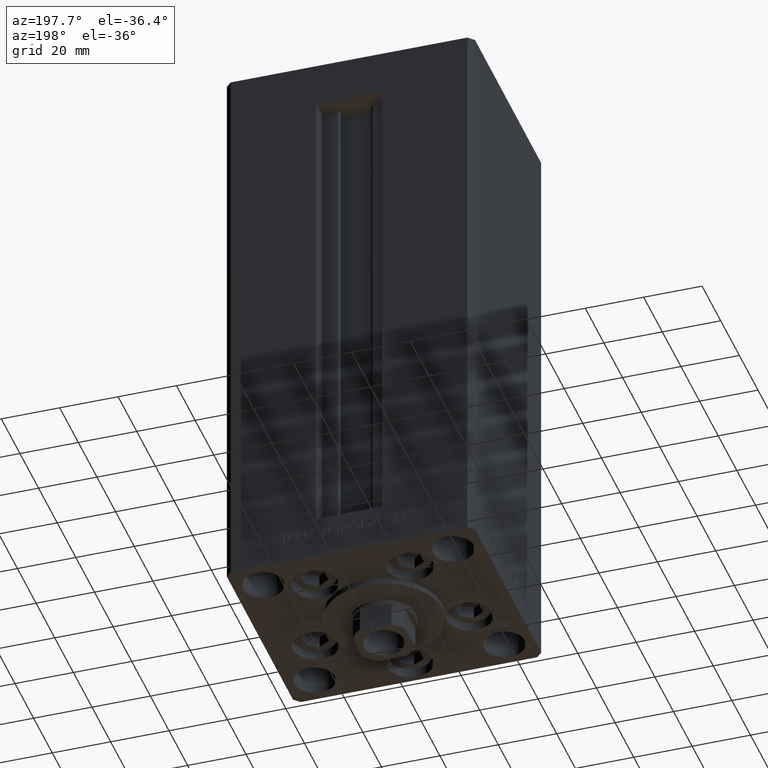
[diagram: clean part render]
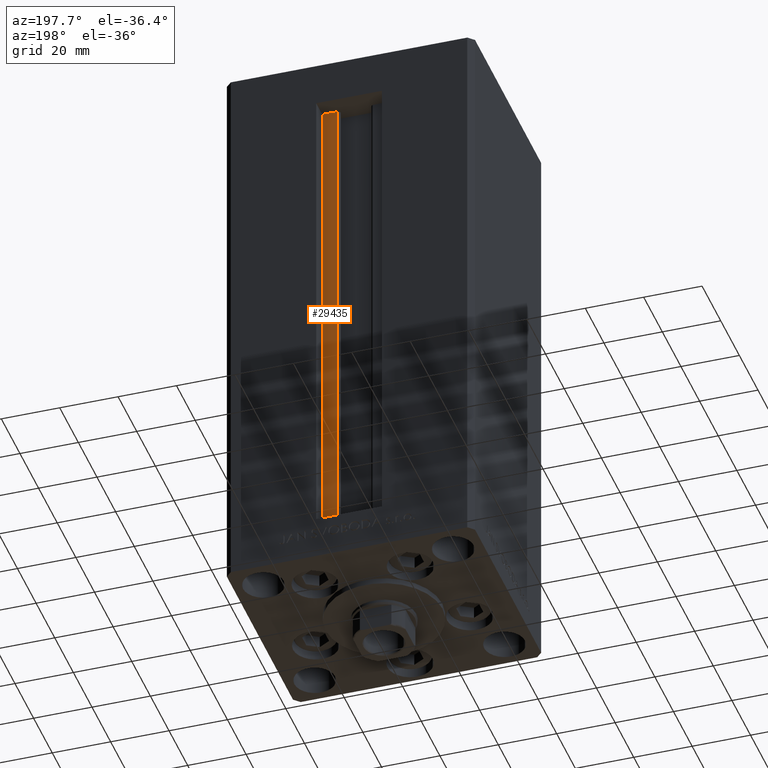
[diagram: same view with one face highlighted and labeled with its STEP entity id]
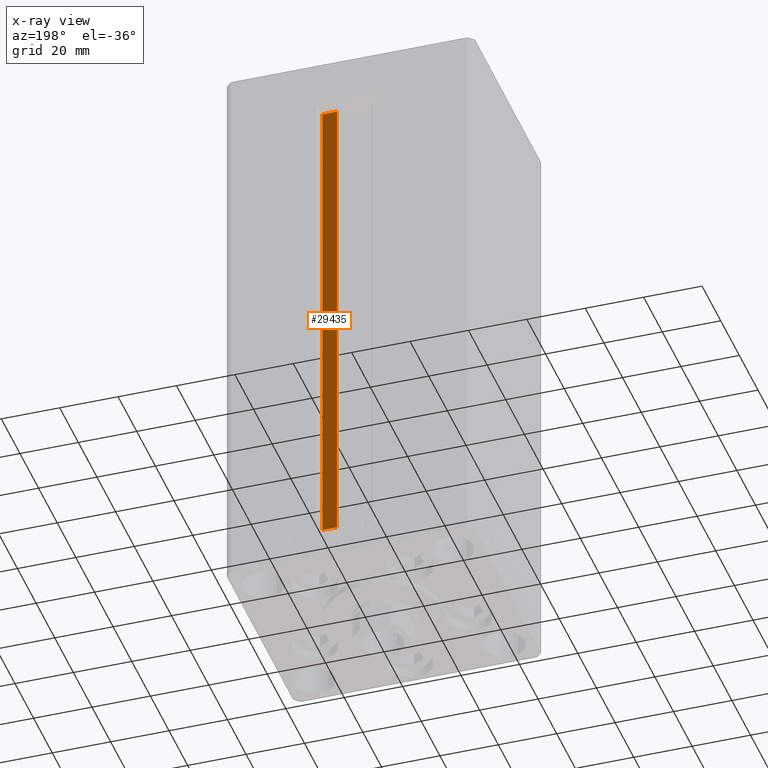
[diagram: x-ray of the same camera — body ghosted, the highlighted face saturated]
A machine part, auxiliary view. The second image highlights one B-rep face of the part: STEP entity #29435.
The next image is the same camera in x-ray: the body ghosted, the highlighted face saturated — about 0% of this face is hidden behind the body in this view.
In plain terms, the highlighted planar face has unit normal (0, -1, 0).
Its self-contained STEP definition (entity closure, byte-faithful):
#720 = DIRECTION ( 'NONE',  ( -0.000000000000000000, -0.000000000000000000, 1.000000000000000000 ) ) ;
#4165 = CARTESIAN_POINT ( 'NONE',  ( 11.25000000000000000, 30.99999999999999289, 0.000000000000000000 ) ) ;
#4417 = VECTOR ( 'NONE', #720, 1000.000000000000000 ) ;
#5646 = EDGE_CURVE ( 'NONE', #39205, #37683, #34387, .T. ) ;
#6687 = CARTESIAN_POINT ( 'NONE',  ( 11.25000000000000000, 30.99999999999999289, 168.5000000000000000 ) ) ;
#6946 = DIRECTION ( 'NONE',  ( 0.000000000000000000, -1.000000000000000000, 0.000000000000000000 ) ) ;
#7652 = EDGE_CURVE ( 'NONE', #37683, #17794, #28116, .T. ) ;
#8407 = EDGE_LOOP ( 'NONE', ( #10072, #34427, #46985, #15346 ) ) ;
#8584 = DIRECTION ( 'NONE',  ( -1.000000000000000000, 0.000000000000000000, 0.000000000000000000 ) ) ;
#10072 = ORIENTED_EDGE ( 'NONE', *, *, #5646, .F. ) ;
#10658 = FACE_OUTER_BOUND ( 'NONE', #8407, .T. ) ;
#14381 = VECTOR ( 'NONE', #16017, 1000.000000000000000 ) ;
#14615 = DIRECTION ( 'NONE',  ( 0.000000000000000000, -0.000000000000000000, -1.000000000000000000 ) ) ;
#14730 = VECTOR ( 'NONE', #8584, 1000.000000000000000 ) ;
#15346 = ORIENTED_EDGE ( 'NONE', *, *, #7652, .F. ) ;
#16017 = DIRECTION ( 'NONE',  ( 1.000000000000000000, 0.000000000000000000, 0.000000000000000000 ) ) ;
#16648 = DIRECTION ( 'NONE',  ( -0.000000000000000000, -0.000000000000000000, 1.000000000000000000 ) ) ;
#17327 = VECTOR ( 'NONE', #16648, 1000.000000000000000 ) ;
#17794 = VERTEX_POINT ( 'NONE', #46589 ) ;
#22587 = CARTESIAN_POINT ( 'NONE',  ( 11.25000000000000000, 30.99999999999999289, 0.000000000000000000 ) ) ;
#22956 = CARTESIAN_POINT ( 'NONE',  ( 6.183333333333999704, 30.99999999999999289, 0.000000000000000000 ) ) ;
#26260 = PLANE ( 'NONE',  #32952 ) ;
#27165 = LINE ( 'NONE', #22956, #14381 ) ;
#28116 = LINE ( 'NONE', #35560, #14730 ) ;
#29435 = ADVANCED_FACE ( 'NONE', ( #10658 ), #26260, .F. ) ;
#32952 = AXIS2_PLACEMENT_3D ( 'NONE', #36435, #6946, #14615 ) ;
#34371 = EDGE_CURVE ( 'NONE', #38234, #17794, #42674, .T. ) ;
#34387 = LINE ( 'NONE', #4165, #4417 ) ;
#34427 = ORIENTED_EDGE ( 'NONE', *, *, #45796, .F. ) ;
#35560 = CARTESIAN_POINT ( 'NONE',  ( 0.000000000000000000, 30.99999999999999289, 168.5000000000000000 ) ) ;
#36196 = CARTESIAN_POINT ( 'NONE',  ( 6.183333333333999704, 30.99999999999999289, 0.000000000000000000 ) ) ;
#36435 = CARTESIAN_POINT ( 'NONE',  ( 6.183333333333999704, 30.99999999999999289, 0.000000000000000000 ) ) ;
#37683 = VERTEX_POINT ( 'NONE', #6687 ) ;
#38234 = VERTEX_POINT ( 'NONE', #42786 ) ;
#39205 = VERTEX_POINT ( 'NONE', #22587 ) ;
#42674 = LINE ( 'NONE', #36196, #17327 ) ;
#42786 = CARTESIAN_POINT ( 'NONE',  ( 6.183333333333999704, 30.99999999999999289, 0.000000000000000000 ) ) ;
#45796 = EDGE_CURVE ( 'NONE', #38234, #39205, #27165, .T. ) ;
#46589 = CARTESIAN_POINT ( 'NONE',  ( 6.183333333333999704, 30.99999999999999289, 168.5000000000000000 ) ) ;
#46985 = ORIENTED_EDGE ( 'NONE', *, *, #34371, .T. ) ;